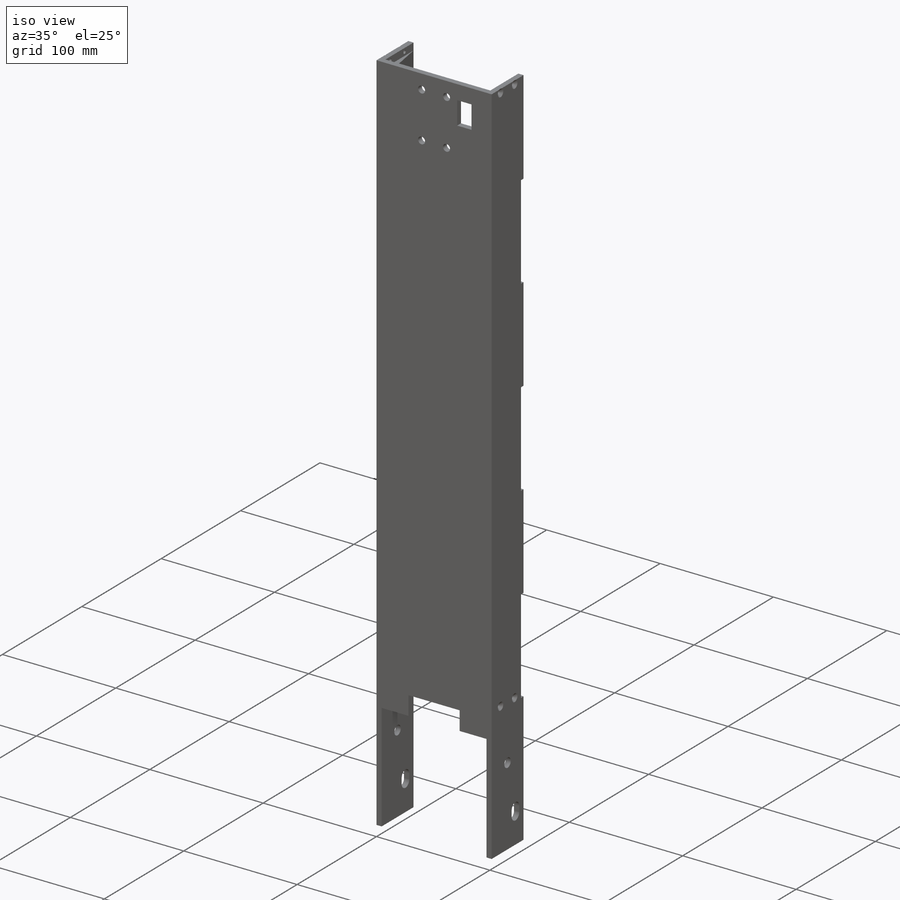
[diagram: iso view]
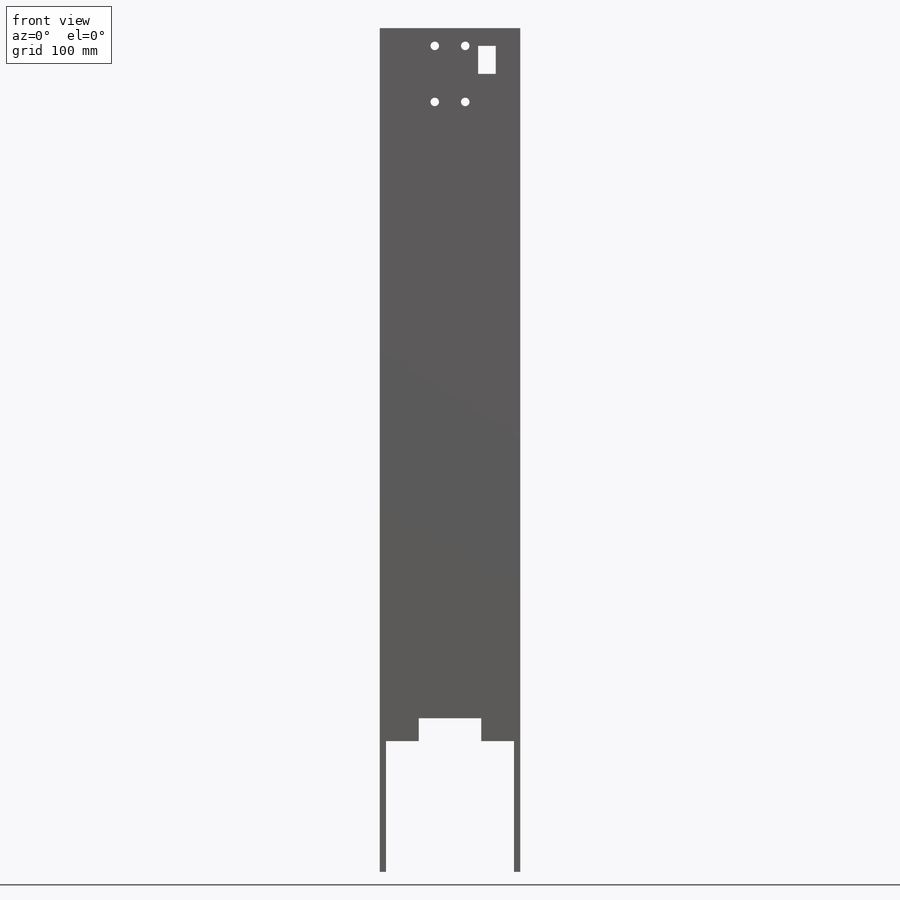
[diagram: front view]
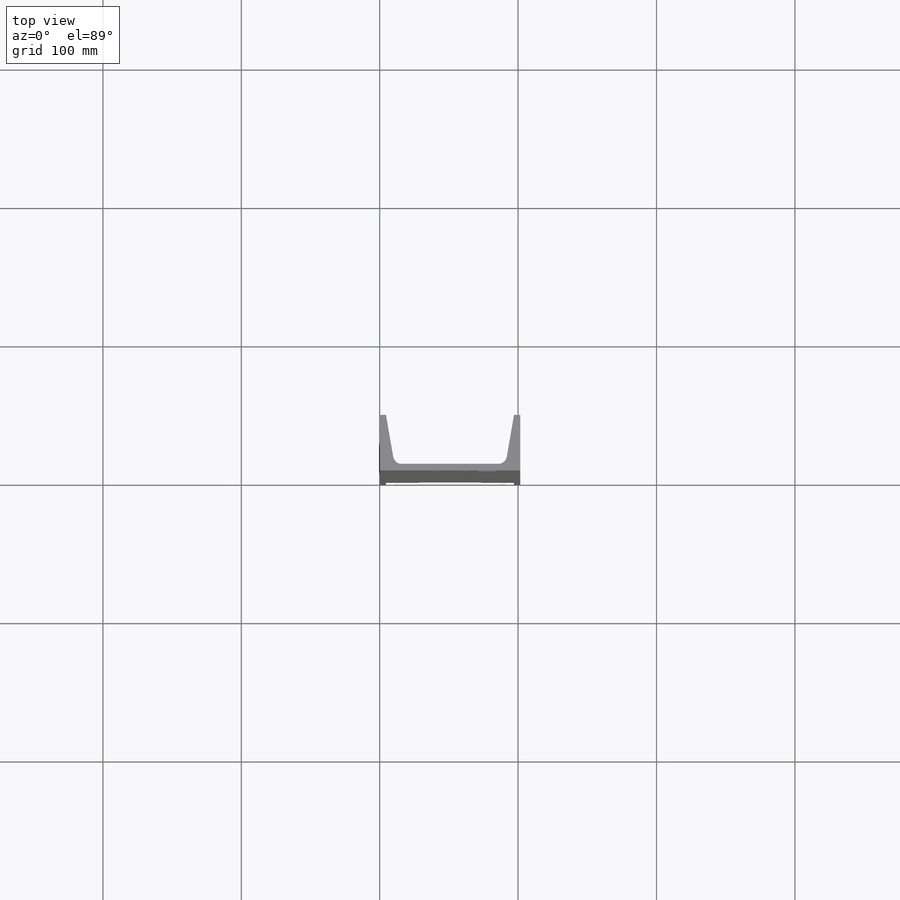
[diagram: top view]
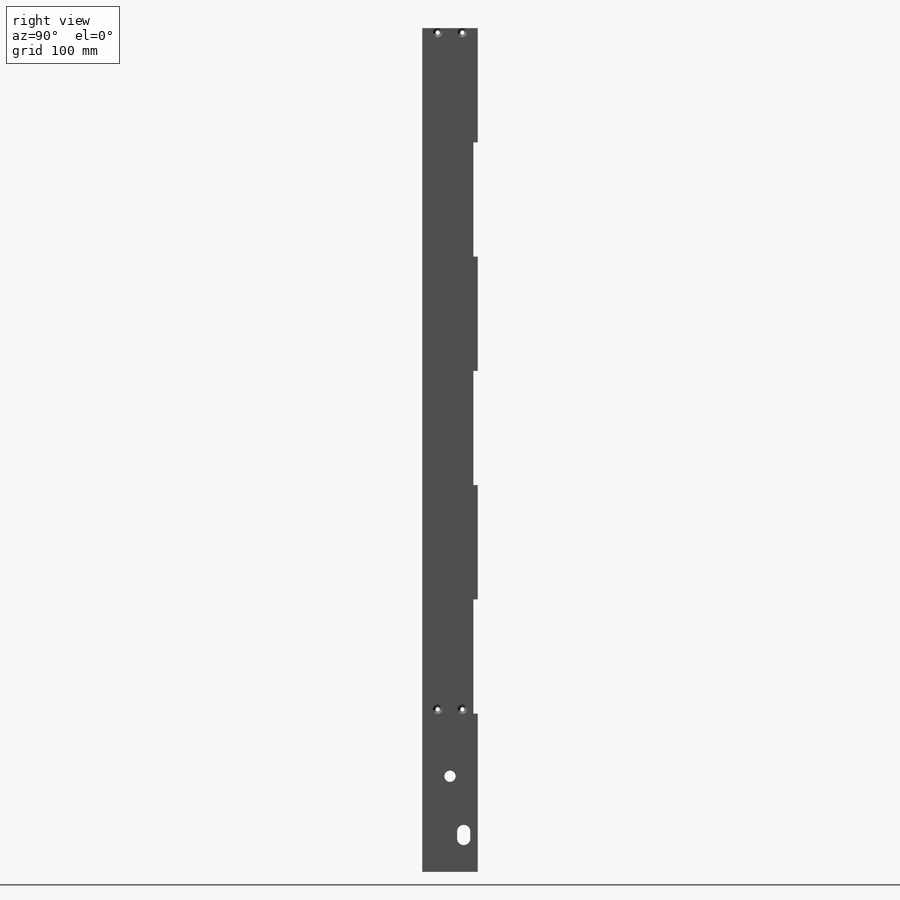
[diagram: right view]
SOLIDWORKS PART (.sldprt)
format: sldprt  version: not decoded by parser v0  size: 382,464 bytes
history: native  units: mm
features: sketch x7, cut_extrude x6, material x1, extrude x1, chamfer x1, fillet x1 (+11 scaffold rows collapsed)
feature tree (28):
  scaffold x11  (default folders/planes/origin — collapsed)
  material  "Material <not specified>"
  sketch  "Sketch1"  dims[c1.D4=2.54mm c1.D9=6.35mm c1.D1=40.132mm c1.D2=101.6mm c1.D5=40.132mm c1.D6=4.699mm c1.D7=4.8006mm c1.D8=102.2096mm c2.D4=101.6mm c2.D3=4.572mm]
  extrude  "Boss-Extrude1"  Depth=609.6mm
  sketch  "Sketch5"
  cut_extrude  "Cut-Extrude4"  Depth=94.488mm
  sketch  "Sketch6"  dims[c1.D1=17.78mm c1.D4=6.35mm c1.D5=3.048mm c1.D6=3.048mm c2.D5=3.048mm c2.D1=6.1468mm c2.D2=22.0218mm c2.D3=40.513mm c2.D7=40.7162mm c2.D8=20.3581mm c2.D4=20.2565mm c2.D9=12.7mm]
  cut_extrude  "Cut-Extrude5"  [1 undecoded]
  sketch  "Sketch4"  dims[c1.D3=8.128mm c1.D11=3.048mm c1.D1=94.488mm c1.D2=25.4mm c1.D4=114.3mm c1.D5=82.55mm c1.D8=82.55mm c1.D9=3.175mm c1.D10=6.35mm c1.D12=3.175mm c1.D13=6.35mm c1.D14=6.35mm c1.D15=241.3mm c1.D16=4.8006mm c1.D17=3.175mm c2.D12=16.0782mm c2.D13=6.35mm c2.D6=2.0 c2.D7=5.0]
  cut_extrude  "Cut-Extrude3"  [1 undecoded]
  sketch  "Sketch7"
  cut_extrude  "Cut-Extrude6"  Depth=6.35mm
  sketch  "Sketch8"
  cut_extrude  "Cut-Extrude7"  Depth=26.162mm
  sketch  "Sketch10"  dims[D1=2.2606mm D2=2.286mm D3=41.021mm]
  cut_extrude  "Cut-Extrude8"  Depth=12.7mm
  chamfer  "Chamfer1"  Distance=1.905mm Angle=45deg
  fillet  "Fillet1"  Radius=3.175mm
decode coverage: 11 of 16 modeling features carry decoded parameters
note: 2 parameter values undecoded
note: suppression state not decoded; provenance and decode notes live in map.json
